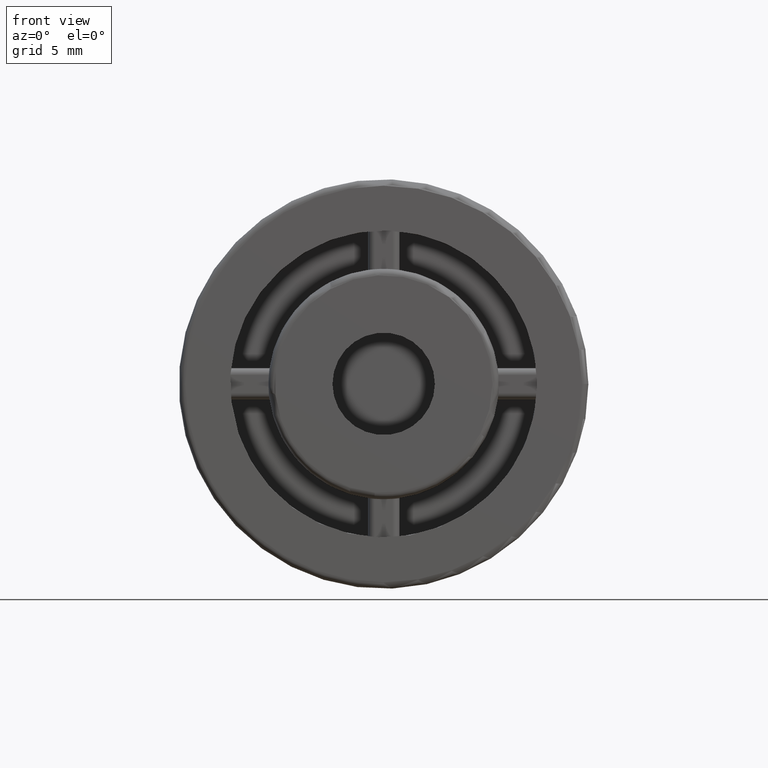
[diagram: clean part render]
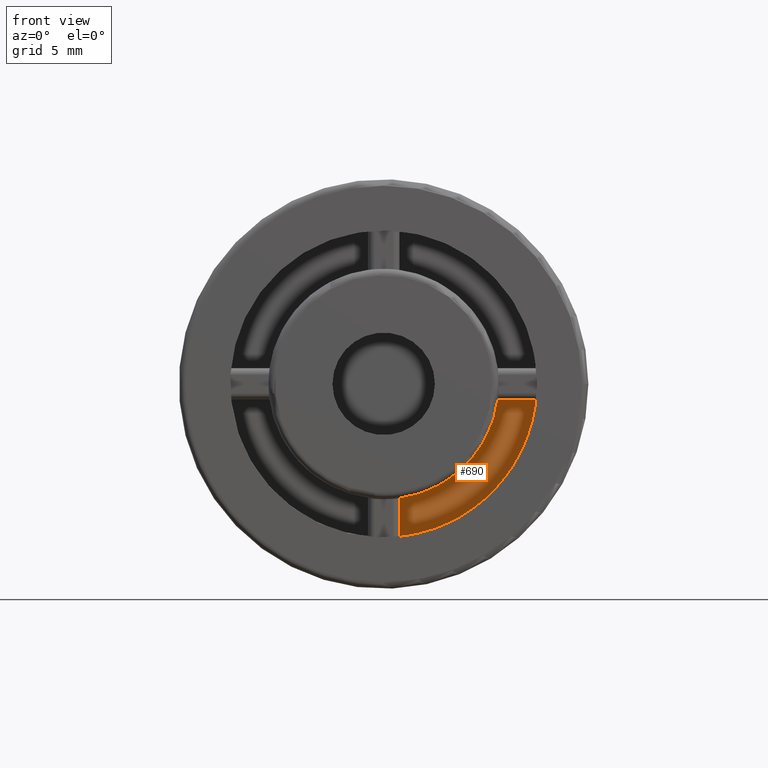
[diagram: same view with one face highlighted and labeled with its STEP entity id]
A machine part, front view. The second image highlights one B-rep face of the part: STEP entity #690.
In plain terms, the highlighted planar face has unit normal (0, -1, 0).
Its self-contained STEP definition (entity closure, byte-faithful):
#43=CIRCLE('',#736,9.);
#58=CIRCLE('',#765,12.);
#87=PLANE('',#764);
#128=FACE_OUTER_BOUND('',#185,.T.);
#185=EDGE_LOOP('',(#578,#579,#580,#581));
#221=LINE('',#1124,#261);
#226=LINE('',#1157,#266);
#261=VECTOR('',#823,3.02106800618036);
#266=VECTOR('',#832,3.02106800618036);
#321=VERTEX_POINT('',#1121);
#322=VERTEX_POINT('',#1123);
#327=VERTEX_POINT('',#1154);
#328=VERTEX_POINT('',#1156);
#389=EDGE_CURVE('',#322,#321,#221,.T.);
#396=EDGE_CURVE('',#328,#327,#226,.T.);
#430=EDGE_CURVE('',#322,#327,#43,.T.);
#445=EDGE_CURVE('',#328,#321,#58,.T.);
#578=ORIENTED_EDGE('',*,*,#389,.T.);
#579=ORIENTED_EDGE('',*,*,#445,.F.);
#580=ORIENTED_EDGE('',*,*,#396,.T.);
#581=ORIENTED_EDGE('',*,*,#430,.F.);
#690=ADVANCED_FACE('',(#128),#87,.T.);
#736=AXIS2_PLACEMENT_3D('',#1274,#891,#892);
#764=AXIS2_PLACEMENT_3D('',#1313,#947,#948);
#765=AXIS2_PLACEMENT_3D('',#1314,#949,#950);
#823=DIRECTION('',(1.71363280495724E-16,1.08715119760944E-32,-1.));
#832=DIRECTION('',(-1.,-6.34413156928661E-17,1.10130940538356E-16));
#891=DIRECTION('center_axis',(6.34413156928661E-17,-1.,0.));
#892=DIRECTION('ref_axis',(-1.,0.,0.));
#947=DIRECTION('center_axis',(6.34413156928661E-17,-1.,0.));
#948=DIRECTION('ref_axis',(0.,0.,-1.));
#949=DIRECTION('center_axis',(-6.34413156928661E-17,1.,0.));
#950=DIRECTION('ref_axis',(-1.,-6.34413156928661E-17,0.));
#1121=CARTESIAN_POINT('',(1.225,5.5,-11.9373102079154));
#1123=CARTESIAN_POINT('',(1.225,5.5,-8.91624220173499));
#1124=CARTESIAN_POINT('',(1.225,5.5,-6.63127612158834));
#1154=CARTESIAN_POINT('',(8.91624220173499,5.5,-1.225));
#1156=CARTESIAN_POINT('',(11.9373102079154,5.5,-1.225));
#1157=CARTESIAN_POINT('',(3.48098344725556,5.5,-1.225));
#1274=CARTESIAN_POINT('Origin',(0.,5.5,0.));
#1313=CARTESIAN_POINT('Origin',(-7.39255249150933E-16,5.5,-3.08395284618099E-16));
#1314=CARTESIAN_POINT('Origin',(0.,5.5,0.));